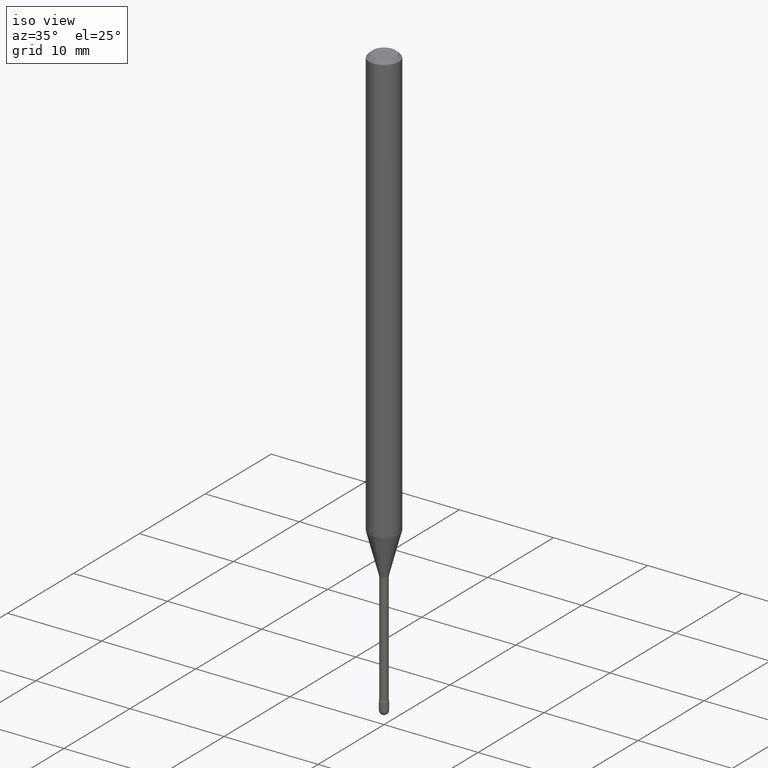
[diagram: clean part render]
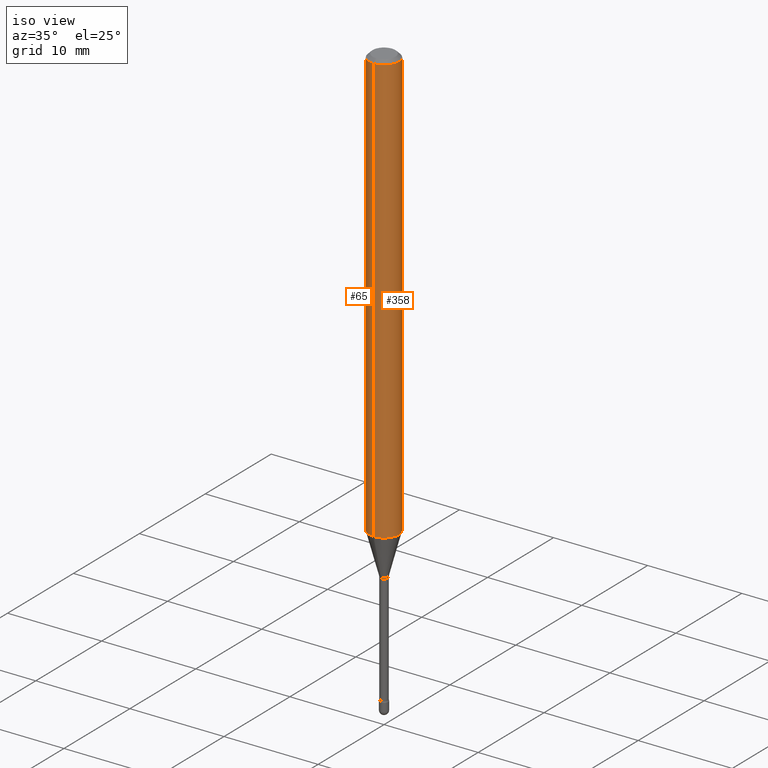
[diagram: same view with one multi-face feature highlighted, each face labeled with its STEP entity id]
A machine part, iso view. The highlighted faces form ONE feature: a constant-radius fillet chain: 2 tangent blend faces with common blend radius 1.5875 mm. The faces share edges in the B-rep.
Their STEP definitions:
[1] entity #65 (Cylinder):
#17 = CIRCLE ( 'NONE', #352, 0.06250000000000000000 ) ;
#39 = CIRCLE ( 'NONE', #451, 0.06250000000000000000 ) ;
#44 = VERTEX_POINT ( 'NONE', #227 ) ;
#55 = ORIENTED_EDGE ( 'NONE', *, *, #409, .T. ) ;
#62 = DIRECTION ( 'NONE',  ( -2.445476480015523833E-29, 3.491470349481263853E-15, 1.000000000000000000 ) ) ;
#63 = CARTESIAN_POINT ( 'NONE',  ( -1.169113584055446105E-44, 1.669184350826100908E-30, 4.780733988912460139E-16 ) ) ;
#65 = ADVANCED_FACE ( 'NONE', ( #275 ), #452, .T. ) ;
#71 = EDGE_CURVE ( 'NONE', #44, #545, #17, .T. ) ;
#83 = AXIS2_PLACEMENT_3D ( 'NONE', #63, #151, #499 ) ;
#104 = CARTESIAN_POINT ( 'NONE',  ( -4.364351673553912750E-16, -0.06250000000000005551, -0.01499999999999986587 ) ) ;
#108 = CARTESIAN_POINT ( 'NONE',  ( 3.668214720023305841E-31, -5.237205524221924868E-17, -0.01500000000000008271 ) ) ;
#125 = DIRECTION ( 'NONE',  ( -6.982962677686265922E-15, -1.000000000000000000, 4.370956789862821150E-15 ) ) ;
#129 = CARTESIAN_POINT ( 'NONE',  ( 4.440892098501065952E-16, 0.06249999999999369948, -1.803139060311453878 ) ) ;
#151 = DIRECTION ( 'NONE',  ( -2.445476480015523833E-29, 3.491470349481263853E-15, 1.000000000000000000 ) ) ;
#174 = EDGE_LOOP ( 'NONE', ( #400, #55, #357, #349 ) ) ;
#182 = CARTESIAN_POINT ( 'NONE',  ( -4.364351673553916201E-16, -0.06250000000000000000, 6.962902957338251033E-16 ) ) ;
#214 = CARTESIAN_POINT ( 'NONE',  ( 4.440892098500625669E-16, 0.06250000000000000000, 2.598565020486670724E-16 ) ) ;
#227 = CARTESIAN_POINT ( 'NONE',  ( 4.440892098501069896E-16, 0.06249999999999995143, -0.01500000000000030129 ) ) ;
#275 = FACE_OUTER_BOUND ( 'NONE', #174, .T. ) ;
#292 = CARTESIAN_POINT ( 'NONE',  ( -4.364351673553477397E-16, -0.06250000000000631439, -1.803139060311453434 ) ) ;
#299 = VERTEX_POINT ( 'NONE', #292 ) ;
#349 = ORIENTED_EDGE ( 'NONE', *, *, #71, .F. ) ;
#352 = AXIS2_PLACEMENT_3D ( 'NONE', #108, #62, #413 ) ;
#357 = ORIENTED_EDGE ( 'NONE', *, *, #566, .T. ) ;
#368 = VERTEX_POINT ( 'NONE', #129 ) ;
#399 = EDGE_CURVE ( 'NONE', #368, #44, #531, .T. ) ;
#400 = ORIENTED_EDGE ( 'NONE', *, *, #399, .F. ) ;
#409 = EDGE_CURVE ( 'NONE', #368, #299, #39, .T. ) ;
#413 = DIRECTION ( 'NONE',  ( -6.982962677686265922E-15, -1.000000000000000000, 3.483106191921935554E-15 ) ) ;
#451 = AXIS2_PLACEMENT_3D ( 'NONE', #524, #526, #125 ) ;
#452 = CYLINDRICAL_SURFACE ( 'NONE', #83, 0.06250000000000000000 ) ;
#480 = DIRECTION ( 'NONE',  ( -2.445476480015523833E-29, 3.491470349481263853E-15, 1.000000000000000000 ) ) ;
#492 = VECTOR ( 'NONE', #496, 39.37007874015748143 ) ;
#496 = DIRECTION ( 'NONE',  ( -2.445476480015523833E-29, 3.491470349481263853E-15, 1.000000000000000000 ) ) ;
#499 = DIRECTION ( 'NONE',  ( -6.982962677686265922E-15, -1.000000000000000000, 3.491470349481265036E-15 ) ) ;
#524 = CARTESIAN_POINT ( 'NONE',  ( 4.409534162188952545E-29, -6.295606565068949190E-15, -1.803139060311453656 ) ) ;
#526 = DIRECTION ( 'NONE',  ( -2.445476480015523833E-29, 3.491470349481263853E-15, 1.000000000000000000 ) ) ;
#531 = LINE ( 'NONE', #214, #539 ) ;
#539 = VECTOR ( 'NONE', #480, 39.37007874015748143 ) ;
#540 = LINE ( 'NONE', #182, #492 ) ;
#545 = VERTEX_POINT ( 'NONE', #104 ) ;
#566 = EDGE_CURVE ( 'NONE', #299, #545, #540, .T. ) ;
[2] entity #358 (Cylinder):
#1 = CARTESIAN_POINT ( 'NONE',  ( 4.409534162188952545E-29, -6.295606565068949190E-15, -1.803139060311453656 ) ) ;
#36 = EDGE_CURVE ( 'NONE', #299, #368, #176, .T. ) ;
#44 = VERTEX_POINT ( 'NONE', #227 ) ;
#47 = CARTESIAN_POINT ( 'NONE',  ( -1.169113584055446105E-44, 1.669184350826100908E-30, 4.780733988912460139E-16 ) ) ;
#50 = AXIS2_PLACEMENT_3D ( 'NONE', #47, #96, #485 ) ;
#60 = DIRECTION ( 'NONE',  ( -2.445476480015523833E-29, 3.491470349481263853E-15, 1.000000000000000000 ) ) ;
#87 = CYLINDRICAL_SURFACE ( 'NONE', #50, 0.06250000000000000000 ) ;
#96 = DIRECTION ( 'NONE',  ( -2.445476480015523833E-29, 3.491470349481263853E-15, 1.000000000000000000 ) ) ;
#98 = EDGE_CURVE ( 'NONE', #545, #44, #538, .T. ) ;
#104 = CARTESIAN_POINT ( 'NONE',  ( -4.364351673553912750E-16, -0.06250000000000005551, -0.01499999999999986587 ) ) ;
#129 = CARTESIAN_POINT ( 'NONE',  ( 4.440892098501065952E-16, 0.06249999999999369948, -1.803139060311453878 ) ) ;
#132 = ORIENTED_EDGE ( 'NONE', *, *, #98, .F. ) ;
#170 = DIRECTION ( 'NONE',  ( -2.445476480015523833E-29, 3.491470349481263853E-15, 1.000000000000000000 ) ) ;
#176 = CIRCLE ( 'NONE', #478, 0.06250000000000000000 ) ;
#182 = CARTESIAN_POINT ( 'NONE',  ( -4.364351673553916201E-16, -0.06250000000000000000, 6.962902957338251033E-16 ) ) ;
#214 = CARTESIAN_POINT ( 'NONE',  ( 4.440892098500625669E-16, 0.06250000000000000000, 2.598565020486670724E-16 ) ) ;
#217 = EDGE_LOOP ( 'NONE', ( #439, #259, #132, #417 ) ) ;
#227 = CARTESIAN_POINT ( 'NONE',  ( 4.440892098501069896E-16, 0.06249999999999995143, -0.01500000000000030129 ) ) ;
#252 = AXIS2_PLACEMENT_3D ( 'NONE', #318, #60, #505 ) ;
#259 = ORIENTED_EDGE ( 'NONE', *, *, #399, .T. ) ;
#292 = CARTESIAN_POINT ( 'NONE',  ( -4.364351673553477397E-16, -0.06250000000000631439, -1.803139060311453434 ) ) ;
#299 = VERTEX_POINT ( 'NONE', #292 ) ;
#318 = CARTESIAN_POINT ( 'NONE',  ( 3.668214720023305841E-31, -5.237205524221924868E-17, -0.01500000000000008271 ) ) ;
#350 = FACE_OUTER_BOUND ( 'NONE', #217, .T. ) ;
#358 = ADVANCED_FACE ( 'NONE', ( #350 ), #87, .T. ) ;
#368 = VERTEX_POINT ( 'NONE', #129 ) ;
#399 = EDGE_CURVE ( 'NONE', #368, #44, #531, .T. ) ;
#417 = ORIENTED_EDGE ( 'NONE', *, *, #566, .F. ) ;
#439 = ORIENTED_EDGE ( 'NONE', *, *, #36, .T. ) ;
#478 = AXIS2_PLACEMENT_3D ( 'NONE', #1, #170, #523 ) ;
#480 = DIRECTION ( 'NONE',  ( -2.445476480015523833E-29, 3.491470349481263853E-15, 1.000000000000000000 ) ) ;
#485 = DIRECTION ( 'NONE',  ( -6.982962677686265922E-15, -1.000000000000000000, 3.491470349481265036E-15 ) ) ;
#492 = VECTOR ( 'NONE', #496, 39.37007874015748143 ) ;
#496 = DIRECTION ( 'NONE',  ( -2.445476480015523833E-29, 3.491470349481263853E-15, 1.000000000000000000 ) ) ;
#505 = DIRECTION ( 'NONE',  ( -6.982962677686265922E-15, -1.000000000000000000, 3.483106191921935554E-15 ) ) ;
#523 = DIRECTION ( 'NONE',  ( -6.982962677686265922E-15, -1.000000000000000000, 4.370956789862821150E-15 ) ) ;
#531 = LINE ( 'NONE', #214, #539 ) ;
#538 = CIRCLE ( 'NONE', #252, 0.06250000000000000000 ) ;
#539 = VECTOR ( 'NONE', #480, 39.37007874015748143 ) ;
#540 = LINE ( 'NONE', #182, #492 ) ;
#545 = VERTEX_POINT ( 'NONE', #104 ) ;
#566 = EDGE_CURVE ( 'NONE', #299, #545, #540, .T. ) ;